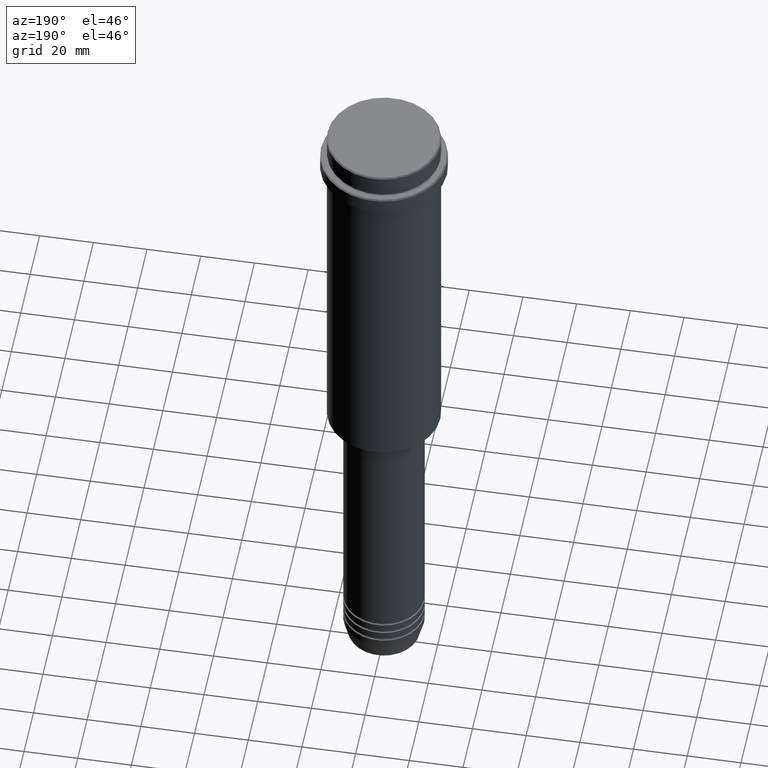
[diagram: clean part render]
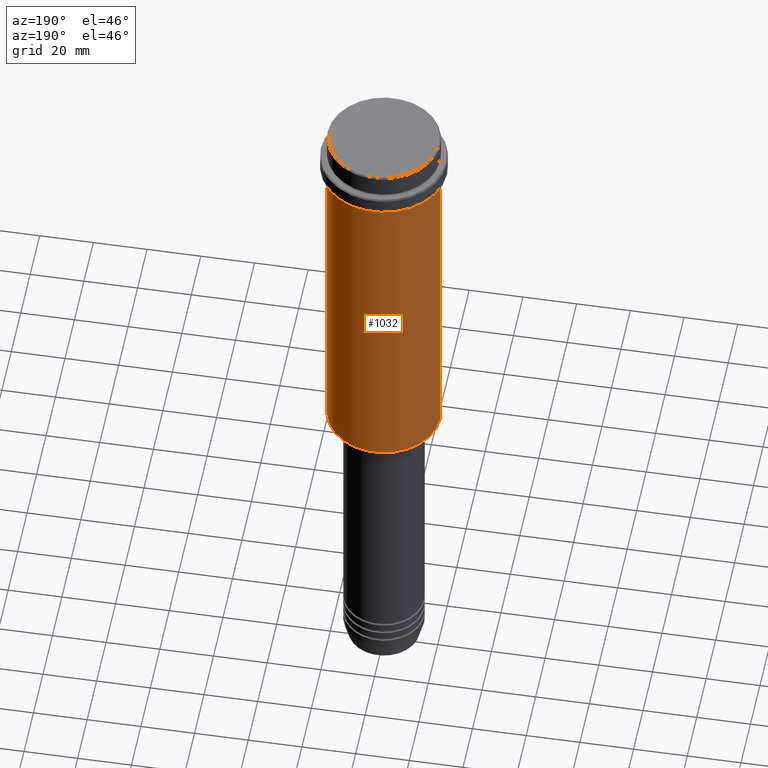
[diagram: same view with one face highlighted and labeled with its STEP entity id]
A machine part, auxiliary view. The second image highlights one B-rep face of the part: STEP entity #1032.
In plain terms, the highlighted cylindrical surface (partial cylindrical patch) has radius 21 mm, axis along (-0, -0, 1).
Its self-contained STEP definition (entity closure, byte-faithful):
#4 = VERTEX_POINT ( 'NONE', #1252 ) ;
#64 = DIRECTION ( 'NONE',  ( -0.000000000000000000, -0.000000000000000000, 1.000000000000000000 ) ) ;
#100 = ORIENTED_EDGE ( 'NONE', *, *, #1281, .T. ) ;
#107 = DIRECTION ( 'NONE',  ( 1.000000000000000000, 0.000000000000000000, 0.000000000000000000 ) ) ;
#140 = CARTESIAN_POINT ( 'NONE',  ( 21.00000000000000000, 0.000000000000000000, 0.000000000000000000 ) ) ;
#175 = ORIENTED_EDGE ( 'NONE', *, *, #779, .T. ) ;
#211 = FACE_OUTER_BOUND ( 'NONE', #821, .T. ) ;
#251 = ORIENTED_EDGE ( 'NONE', *, *, #745, .F. ) ;
#334 = AXIS2_PLACEMENT_3D ( 'NONE', #1084, #543, #986 ) ;
#345 = DIRECTION ( 'NONE',  ( -0.000000000000000000, -0.000000000000000000, 1.000000000000000000 ) ) ;
#357 = LINE ( 'NONE', #140, #586 ) ;
#386 = CARTESIAN_POINT ( 'NONE',  ( -21.00000000000000000, 2.571758278209441661E-15, -144.5000000000000284 ) ) ;
#407 = CARTESIAN_POINT ( 'NONE',  ( 0.000000000000000000, 0.000000000000000000, -144.5000000000000284 ) ) ;
#473 = VERTEX_POINT ( 'NONE', #386 ) ;
#517 = AXIS2_PLACEMENT_3D ( 'NONE', #1118, #345, #107 ) ;
#536 = VERTEX_POINT ( 'NONE', #1175 ) ;
#543 = DIRECTION ( 'NONE',  ( -0.000000000000000000, -0.000000000000000000, 1.000000000000000000 ) ) ;
#586 = VECTOR ( 'NONE', #660, 1000.000000000000000 ) ;
#601 = ORIENTED_EDGE ( 'NONE', *, *, #760, .F. ) ;
#649 = CYLINDRICAL_SURFACE ( 'NONE', #334, 21.00000000000000000 ) ;
#660 = DIRECTION ( 'NONE',  ( -0.000000000000000000, -0.000000000000000000, 1.000000000000000000 ) ) ;
#745 = EDGE_CURVE ( 'NONE', #1332, #536, #357, .T. ) ;
#760 = EDGE_CURVE ( 'NONE', #536, #4, #1168, .T. ) ;
#779 = EDGE_CURVE ( 'NONE', #473, #4, #832, .T. ) ;
#792 = AXIS2_PLACEMENT_3D ( 'NONE', #407, #64, #1043 ) ;
#821 = EDGE_LOOP ( 'NONE', ( #100, #175, #601, #251 ) ) ;
#832 = LINE ( 'NONE', #993, #1331 ) ;
#986 = DIRECTION ( 'NONE',  ( 1.000000000000000000, 0.000000000000000000, 0.000000000000000000 ) ) ;
#993 = CARTESIAN_POINT ( 'NONE',  ( -21.00000000000000000, 2.571758278209441661E-15, 0.000000000000000000 ) ) ;
#1032 = ADVANCED_FACE ( 'NONE', ( #211 ), #649, .T. ) ;
#1043 = DIRECTION ( 'NONE',  ( -1.000000000000000000, 0.000000000000000000, 0.000000000000000000 ) ) ;
#1063 = CARTESIAN_POINT ( 'NONE',  ( 21.00000000000000000, 0.000000000000000000, -144.5000000000000284 ) ) ;
#1084 = CARTESIAN_POINT ( 'NONE',  ( 0.000000000000000000, 0.000000000000000000, 0.000000000000000000 ) ) ;
#1118 = CARTESIAN_POINT ( 'NONE',  ( 0.000000000000000000, 0.000000000000000000, -16.00000000000000355 ) ) ;
#1143 = CIRCLE ( 'NONE', #792, 21.00000000000000000 ) ;
#1168 = CIRCLE ( 'NONE', #517, 21.00000000000000000 ) ;
#1175 = CARTESIAN_POINT ( 'NONE',  ( 21.00000000000000000, 0.000000000000000000, -16.00000000000000355 ) ) ;
#1223 = DIRECTION ( 'NONE',  ( -0.000000000000000000, -0.000000000000000000, 1.000000000000000000 ) ) ;
#1252 = CARTESIAN_POINT ( 'NONE',  ( -21.00000000000000000, 2.571758278209441661E-15, -16.00000000000000355 ) ) ;
#1281 = EDGE_CURVE ( 'NONE', #1332, #473, #1143, .T. ) ;
#1331 = VECTOR ( 'NONE', #1223, 1000.000000000000000 ) ;
#1332 = VERTEX_POINT ( 'NONE', #1063 ) ;